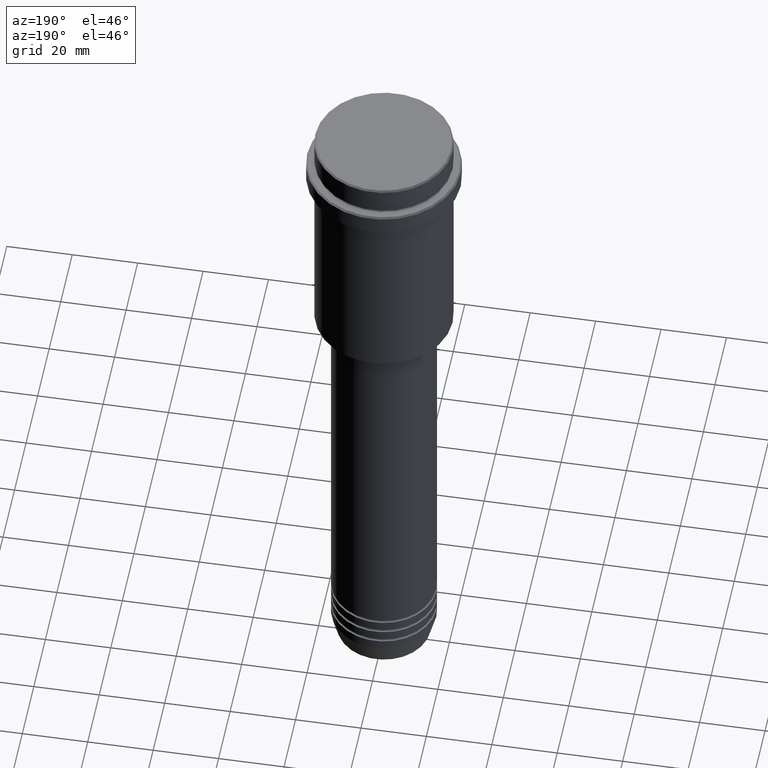
[diagram: clean part render]
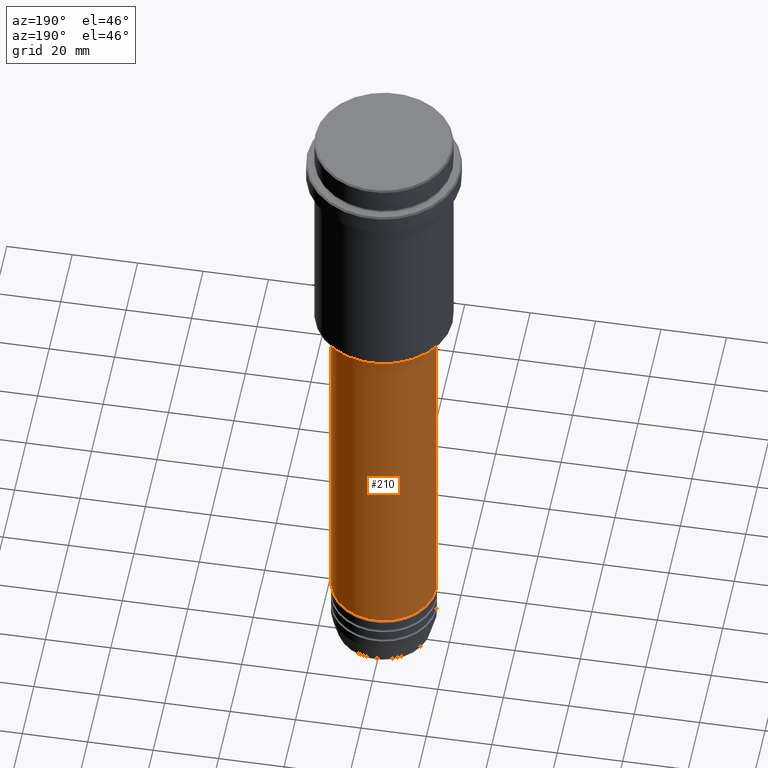
[diagram: same view with one face highlighted and labeled with its STEP entity id]
A machine part, auxiliary view. The second image highlights one B-rep face of the part: STEP entity #210.
In plain terms, the highlighted cylindrical surface (partial cylindrical patch) has radius 16 mm, axis along (-0, -0, 1).
Its self-contained STEP definition (entity closure, byte-faithful):
#59 = CARTESIAN_POINT ( 'NONE',  ( -16.00000000000000355, 1.959434878635765526E-15, -76.00000000000001421 ) ) ;
#73 = ORIENTED_EDGE ( 'NONE', *, *, #946, .T. ) ;
#117 = LINE ( 'NONE', #744, #151 ) ;
#141 = VERTEX_POINT ( 'NONE', #59 ) ;
#151 = VECTOR ( 'NONE', #1084, 1000.000000000000000 ) ;
#210 = ADVANCED_FACE ( 'NONE', ( #1159 ), #739, .T. ) ;
#266 = CIRCLE ( 'NONE', #1064, 16.00000000000000355 ) ;
#350 = CARTESIAN_POINT ( 'NONE',  ( 16.00000000000000355, 0.000000000000000000, -76.00000000000001421 ) ) ;
#390 = CARTESIAN_POINT ( 'NONE',  ( 16.00000000000000000, 0.000000000000000000, 0.000000000000000000 ) ) ;
#425 = DIRECTION ( 'NONE',  ( -0.000000000000000000, -0.000000000000000000, 1.000000000000000000 ) ) ;
#492 = DIRECTION ( 'NONE',  ( -0.000000000000000000, -0.000000000000000000, 1.000000000000000000 ) ) ;
#565 = DIRECTION ( 'NONE',  ( -0.000000000000000000, -0.000000000000000000, 1.000000000000000000 ) ) ;
#577 = CARTESIAN_POINT ( 'NONE',  ( 0.000000000000000000, 0.000000000000000000, -190.9999999999998863 ) ) ;
#610 = EDGE_CURVE ( 'NONE', #1309, #1369, #1175, .T. ) ;
#666 = ORIENTED_EDGE ( 'NONE', *, *, #1293, .F. ) ;
#720 = AXIS2_PLACEMENT_3D ( 'NONE', #577, #1239, #898 ) ;
#739 = CYLINDRICAL_SURFACE ( 'NONE', #1311, 16.00000000000000000 ) ;
#744 = CARTESIAN_POINT ( 'NONE',  ( -16.00000000000000000, 1.959434878635765131E-15, 0.000000000000000000 ) ) ;
#898 = DIRECTION ( 'NONE',  ( 1.000000000000000000, 0.000000000000000000, 0.000000000000000000 ) ) ;
#928 = ORIENTED_EDGE ( 'NONE', *, *, #610, .T. ) ;
#932 = CARTESIAN_POINT ( 'NONE',  ( -16.00000000000000000, 1.959434878635765131E-15, -190.9999999999998863 ) ) ;
#937 = DIRECTION ( 'NONE',  ( 1.000000000000000000, 0.000000000000000000, 0.000000000000000000 ) ) ;
#946 = EDGE_CURVE ( 'NONE', #1369, #141, #117, .T. ) ;
#952 = CARTESIAN_POINT ( 'NONE',  ( 0.000000000000000000, 0.000000000000000000, 0.000000000000000000 ) ) ;
#1026 = LINE ( 'NONE', #390, #1173 ) ;
#1064 = AXIS2_PLACEMENT_3D ( 'NONE', #1113, #565, #937 ) ;
#1084 = DIRECTION ( 'NONE',  ( -0.000000000000000000, -0.000000000000000000, 1.000000000000000000 ) ) ;
#1113 = CARTESIAN_POINT ( 'NONE',  ( 0.000000000000000000, 0.000000000000000000, -76.00000000000001421 ) ) ;
#1158 = CARTESIAN_POINT ( 'NONE',  ( 16.00000000000000000, 0.000000000000000000, -190.9999999999998863 ) ) ;
#1159 = FACE_OUTER_BOUND ( 'NONE', #1304, .T. ) ;
#1166 = DIRECTION ( 'NONE',  ( 1.000000000000000000, 0.000000000000000000, 0.000000000000000000 ) ) ;
#1173 = VECTOR ( 'NONE', #492, 1000.000000000000000 ) ;
#1175 = CIRCLE ( 'NONE', #720, 16.00000000000000000 ) ;
#1206 = VERTEX_POINT ( 'NONE', #350 ) ;
#1223 = EDGE_CURVE ( 'NONE', #1206, #141, #266, .T. ) ;
#1239 = DIRECTION ( 'NONE',  ( -0.000000000000000000, -0.000000000000000000, 1.000000000000000000 ) ) ;
#1293 = EDGE_CURVE ( 'NONE', #1309, #1206, #1026, .T. ) ;
#1304 = EDGE_LOOP ( 'NONE', ( #928, #73, #1358, #666 ) ) ;
#1309 = VERTEX_POINT ( 'NONE', #1158 ) ;
#1311 = AXIS2_PLACEMENT_3D ( 'NONE', #952, #425, #1166 ) ;
#1358 = ORIENTED_EDGE ( 'NONE', *, *, #1223, .F. ) ;
#1369 = VERTEX_POINT ( 'NONE', #932 ) ;